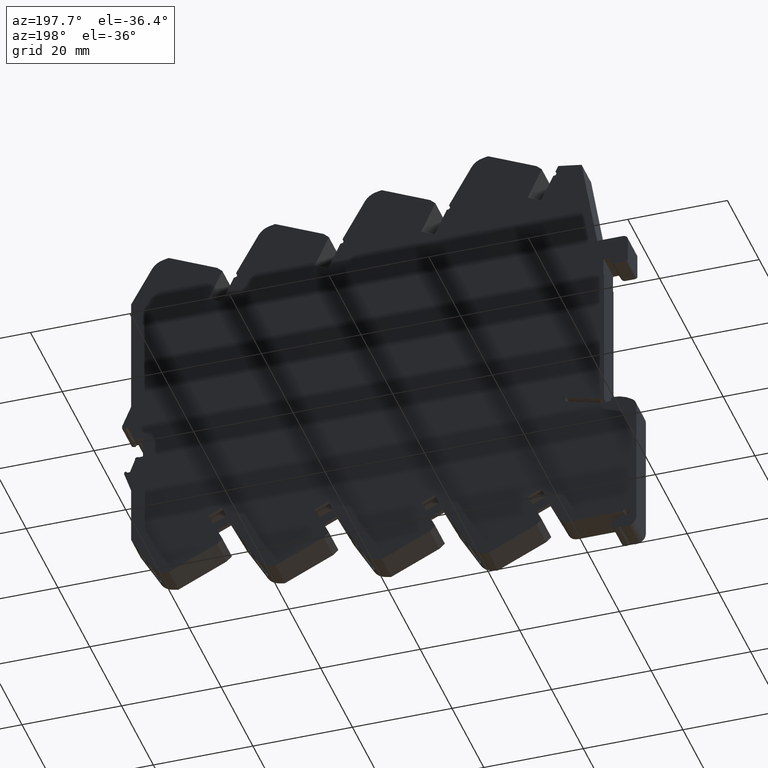
[diagram: clean part render]
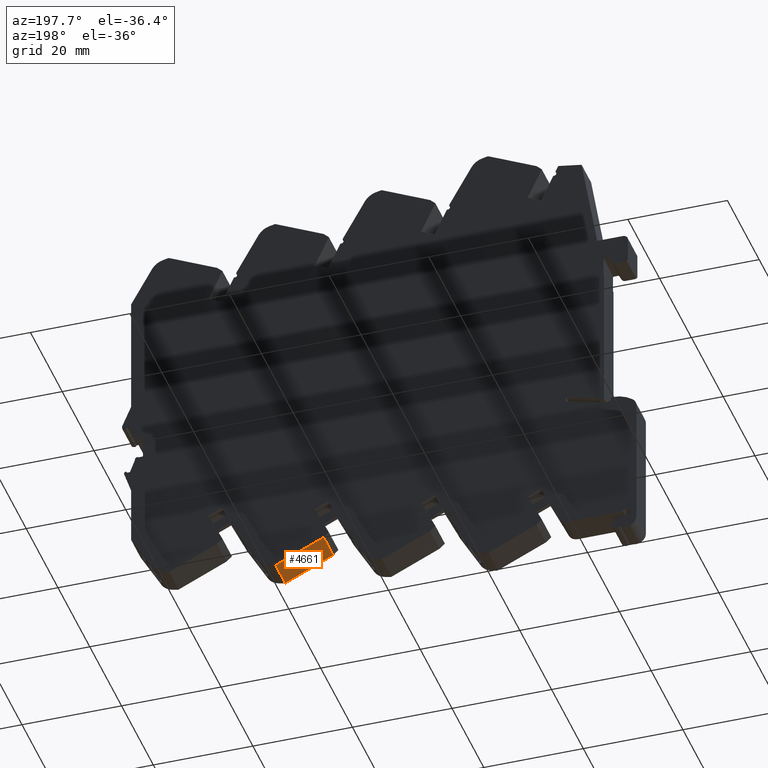
[diagram: same view with one face highlighted and labeled with its STEP entity id]
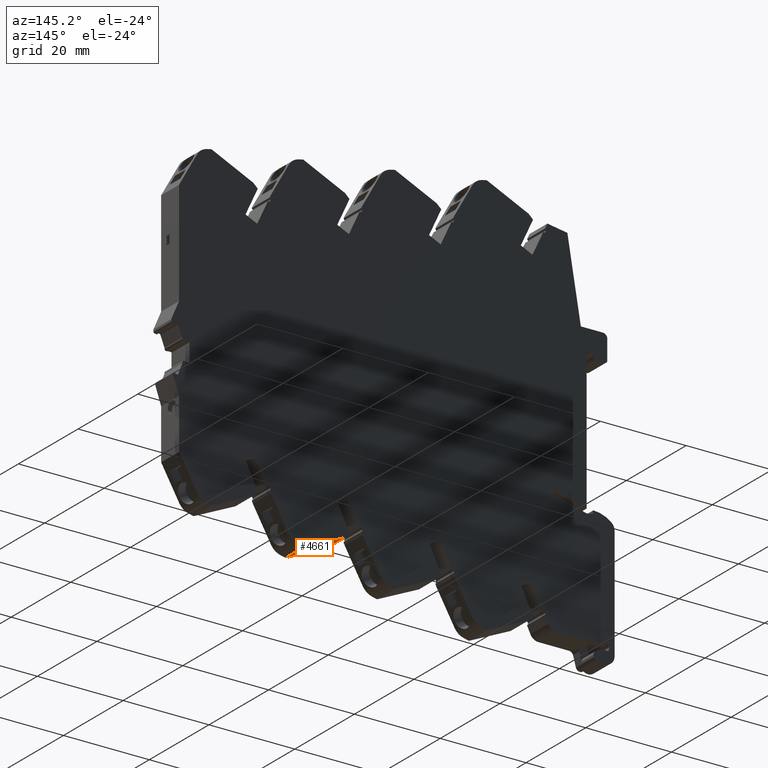
[diagram: same view with one face highlighted and labeled with its STEP entity id]
A machine part, auxiliary view. The second image highlights one B-rep face of the part: STEP entity #4661.
A second angle (auxiliary view) of the same face is appended — the face is thin or edge-on in the first view.
In plain terms, the highlighted planar face has unit normal (0.4226, 0, 0.9063).
Its self-contained STEP definition (entity closure, byte-faithful):
#79 = VERTEX_POINT ( 'NONE', #6131 ) ;
#189 = CARTESIAN_POINT ( 'NONE',  ( 3.000000000000000000, -39.57747228031760045, 21.68741960114301648 ) ) ;
#202 = EDGE_LOOP ( 'NONE', ( #2414, #7492, #549, #5059 ) ) ;
#543 = CARTESIAN_POINT ( 'NONE',  ( 3.000000000000000000, -35.09255900000000139, 12.06949300000000669 ) ) ;
#549 = ORIENTED_EDGE ( 'NONE', *, *, #6786, .F. ) ;
#637 = VECTOR ( 'NONE', #1288, 1000.000000000000000 ) ;
#745 = CARTESIAN_POINT ( 'NONE',  ( 3.000000000000000000, -39.57747228031760045, 21.68741960114301648 ) ) ;
#770 = VERTEX_POINT ( 'NONE', #543 ) ;
#1288 = DIRECTION ( 'NONE',  ( -1.000000000000000000, 0.000000000000000000, 0.000000000000000000 ) ) ;
#1307 = DIRECTION ( 'NONE',  ( 0.000000000000000000, 0.9063077707721685083, 0.4226182966199907853 ) ) ;
#1548 = CARTESIAN_POINT ( 'NONE',  ( -3.000000000000000000, -35.09255900000000139, 12.06949300000000669 ) ) ;
#2039 = PLANE ( 'NONE',  #6902 ) ;
#2168 = DIRECTION ( 'NONE',  ( 0.000000000000000000, 0.4226182966199911184, -0.9063077707721682863 ) ) ;
#2414 = ORIENTED_EDGE ( 'NONE', *, *, #4854, .T. ) ;
#2555 = VERTEX_POINT ( 'NONE', #189 ) ;
#3271 = LINE ( 'NONE', #6503, #637 ) ;
#3339 = DIRECTION ( 'NONE',  ( -1.000000000000000000, 0.000000000000000000, 0.000000000000000000 ) ) ;
#3985 = LINE ( 'NONE', #4158, #6414 ) ;
#4158 = CARTESIAN_POINT ( 'NONE',  ( 3.000000000000000000, -39.57747228031760045, 21.68741960114301648 ) ) ;
#4612 = VECTOR ( 'NONE', #5644, 1000.000000000000000 ) ;
#4661 = ADVANCED_FACE ( 'NONE', ( #5232 ), #2039, .F. ) ;
#4743 = LINE ( 'NONE', #4879, #7733 ) ;
#4854 = EDGE_CURVE ( 'NONE', #79, #5718, #4743, .T. ) ;
#4865 = CARTESIAN_POINT ( 'NONE',  ( 3.000000000000000000, -39.57747228031760045, 21.68741960114301648 ) ) ;
#4879 = CARTESIAN_POINT ( 'NONE',  ( -3.000000000000000000, -39.57747228031760045, 21.68741960114301648 ) ) ;
#5059 = ORIENTED_EDGE ( 'NONE', *, *, #6307, .T. ) ;
#5232 = FACE_OUTER_BOUND ( 'NONE', #202, .T. ) ;
#5402 = DIRECTION ( 'NONE',  ( 0.000000000000000000, 0.4226182966199911184, -0.9063077707721682863 ) ) ;
#5550 = EDGE_CURVE ( 'NONE', #770, #5718, #3271, .T. ) ;
#5644 = DIRECTION ( 'NONE',  ( -1.000000000000000000, 0.000000000000000000, 0.000000000000000000 ) ) ;
#5718 = VERTEX_POINT ( 'NONE', #1548 ) ;
#6131 = CARTESIAN_POINT ( 'NONE',  ( -3.000000000000000000, -39.57747228031760045, 21.68741960114301648 ) ) ;
#6292 = LINE ( 'NONE', #4865, #4612 ) ;
#6307 = EDGE_CURVE ( 'NONE', #2555, #79, #6292, .T. ) ;
#6414 = VECTOR ( 'NONE', #5402, 1000.000000000000114 ) ;
#6503 = CARTESIAN_POINT ( 'NONE',  ( 3.000000000000000000, -35.09255900000000139, 12.06949300000000669 ) ) ;
#6786 = EDGE_CURVE ( 'NONE', #2555, #770, #3985, .T. ) ;
#6902 = AXIS2_PLACEMENT_3D ( 'NONE', #745, #1307, #3339 ) ;
#7492 = ORIENTED_EDGE ( 'NONE', *, *, #5550, .F. ) ;
#7733 = VECTOR ( 'NONE', #2168, 1000.000000000000114 ) ;